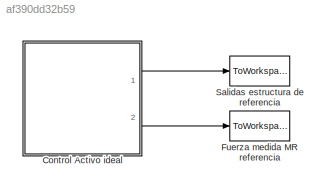
MODEL slx_af390dd32b59
KIND model
CONFIG AbsTol = auto
CONFIG EnableMultiTasking = off
CONFIG FixedStep = dtsim
CONFIG MaxStep = auto
CONFIG MinStep = auto
CONFIG RelTol = 1e-3
CONFIG SampleTimeConstraint = Unconstrained
CONFIG SolverName = ode4
CONFIG StartTime = 0.0
CONFIG StopTime = ttotal
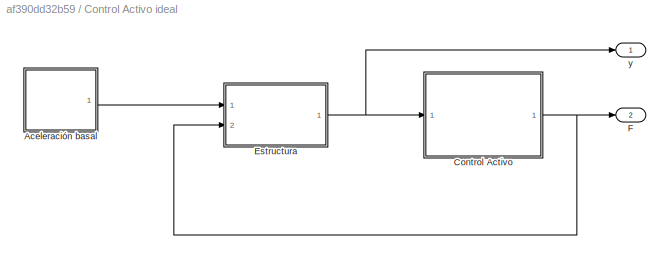
BLOCK [SubSystem] Control Activo ideal
  Ports = [0, 2]
  RequestExecContextInheritance = off
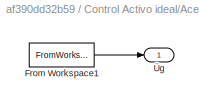
BLOCK [SubSystem] Control Activo ideal/Aceleración basal
  Ports = [0, 1]
  RequestExecContextInheritance = off
BLOCK [FromWorkspace] Control Activo ideal/Aceleración basal/From Workspace1
  OutputAfterFinalValue = Setting to zero
  VariableName = Ug
BLOCK [Outport] Control Activo ideal/Aceleración basal/Üg
  VectorParamsAs1DForOutWhenUnconnected = off
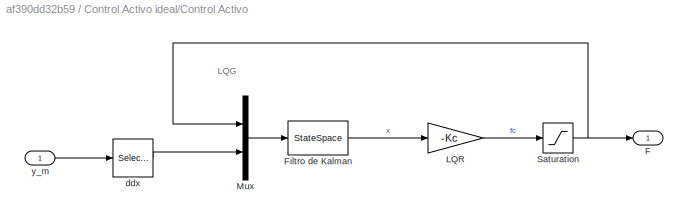
BLOCK [SubSystem] Control Activo ideal/Control Activo
  Ports = [1, 1]
  RequestExecContextInheritance = off
BLOCK [Outport] Control Activo ideal/Control Activo/F
  NameLocation = top
BLOCK [StateSpace] Control Activo ideal/Control Activo/Filtro de Kalman
  A = sys_kalman.a
  B = sys_kalman.b
  C = sys_kalman.c
  D = sys_kalman.d
  InitialCondition = 0
  Ports = [1, 1]
BLOCK [Gain] Control Activo ideal/Control Activo/LQR
  Gain = -Kc
  Multiplication = Matrix(K*u) (u vector)
BLOCK [Mux] Control Activo ideal/Control Activo/Mux
  DisplayOption = bar
  Inputs = 2
  Ports = [2, 1]
BLOCK [Saturate] Control Activo ideal/Control Activo/Saturation
  LowerLimit = -max(abs(Referencia.LQGCOC.F))
  UpperLimit = max(abs(Referencia.LQGCOC.F))
BLOCK [Selector] Control Activo ideal/Control Activo/ddx
  IndexOptions = Index vector (dialog)
  Indices = 10:12
  InputPortWidth = 12
  OutputSizes = 1
  Ports = [1, 1]
BLOCK [Inport] Control Activo ideal/Control Activo/y_m
  NameLocation = top
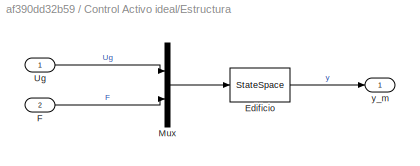
BLOCK [SubSystem] Control Activo ideal/Estructura
  Ports = [2, 1]
  RequestExecContextInheritance = off
BLOCK [StateSpace] Control Activo ideal/Estructura/Edificio
  A = Edificio.A
  B = Edificio.B
  C = Edificio.C
  D = Edificio.D
  InitialCondition = 0
  Ports = [1, 1]
BLOCK [Inport] Control Activo ideal/Estructura/F 
  Port = 2
BLOCK [Mux] Control Activo ideal/Estructura/Mux
  DisplayOption = bar
  Inputs = 2
  Ports = [2, 1]
BLOCK [Inport] Control Activo ideal/Estructura/Ug
BLOCK [Outport] Control Activo ideal/Estructura/y_m
BLOCK [Outport] Control Activo ideal/F
  NameLocation = right
  Port = 2
  VectorParamsAs1DForOutWhenUnconnected = off
BLOCK [Outport] Control Activo ideal/y
  NameLocation = right
  VectorParamsAs1DForOutWhenUnconnected = off
BLOCK [ToWorkspace] Fuerza medida MR referencia
  FixptAsFi = on
  MaxDataPoints = inf
  NameLocation = right
  Ports = [1]
  SampleTime = -1
  SaveFormat = Timeseries
  VariableName = F_A
BLOCK [ToWorkspace] Salidas estructura de referencia
  FixptAsFi = on
  MaxDataPoints = inf
  NameLocation = right
  Ports = [1]
  SampleTime = -1
  SaveFormat = Timeseries
  VariableName = y_A
ANNOTATION Control Activo ideal/Control Activo: LQG
LINE Control Activo ideal/Aceleración basal/From Workspace1:1 -> Control Activo ideal/Aceleración basal/Üg:1
LINE Control Activo ideal/Aceleración basal:1 -> Control Activo ideal/Estructura:1
LINE Control Activo ideal/Control Activo/Filtro de Kalman:1 -> Control Activo ideal/Control Activo/LQR:1
LINE Control Activo ideal/Control Activo/LQR:1 -> Control Activo ideal/Control Activo/Saturation:1
LINE Control Activo ideal/Control Activo/Mux:1 -> Control Activo ideal/Control Activo/Filtro de Kalman:1
NET Control Activo ideal/Control Activo/Saturation:1 -> Control Activo ideal/Control Activo/F:1, Control Activo ideal/Control Activo/Mux:1
LINE Control Activo ideal/Control Activo/ddx:1 -> Control Activo ideal/Control Activo/Mux:2
LINE Control Activo ideal/Control Activo/y_m:1 -> Control Activo ideal/Control Activo/ddx:1
NET Control Activo ideal/Control Activo:1 -> Control Activo ideal/Estructura:2, Control Activo ideal/F:1
LINE Control Activo ideal/Estructura/Edificio:1 -> Control Activo ideal/Estructura/y_m:1
LINE Control Activo ideal/Estructura/F :1 -> Control Activo ideal/Estructura/Mux:2
LINE Control Activo ideal/Estructura/Mux:1 -> Control Activo ideal/Estructura/Edificio:1
LINE Control Activo ideal/Estructura/Ug:1 -> Control Activo ideal/Estructura/Mux:1
NET Control Activo ideal/Estructura:1 -> Control Activo ideal/Control Activo:1, Control Activo ideal/y:1
LINE Control Activo ideal:1 -> Salidas estructura de referencia:1
LINE Control Activo ideal:2 -> Fuerza medida MR referencia:1
note: NET lines group one-source signal fan-out (src -> all destinations, sorted); 1:1 wires keep LINE
